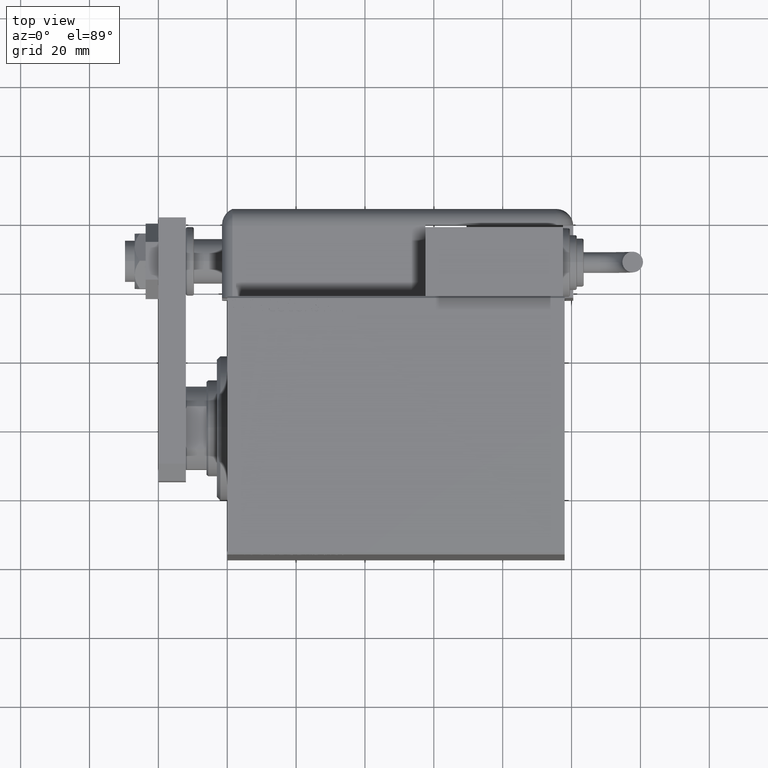
[diagram: clean part render]
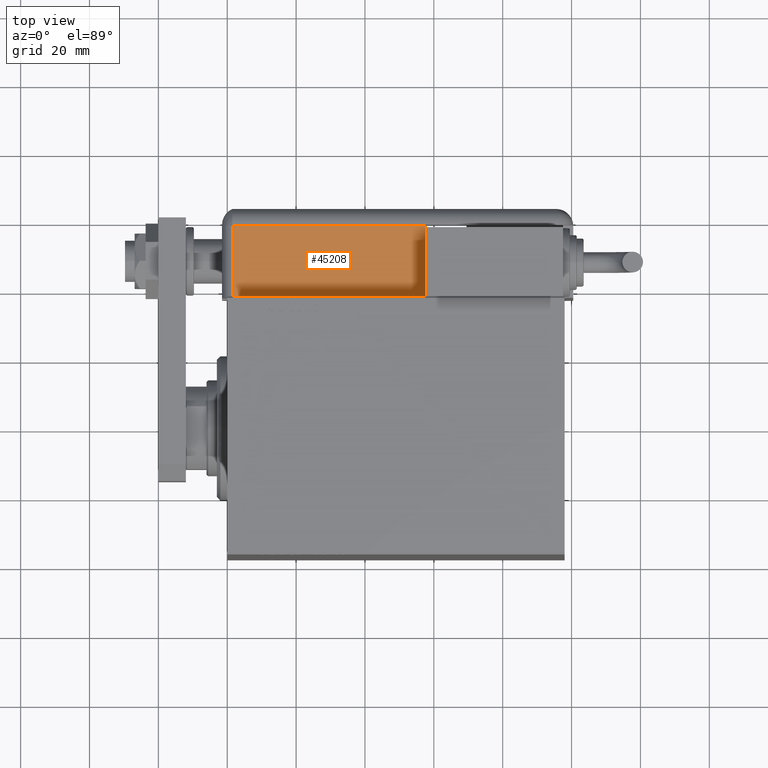
[diagram: same view with one face highlighted and labeled with its STEP entity id]
A machine part, top view. The second image highlights one B-rep face of the part: STEP entity #45208.
In plain terms, the highlighted planar face has unit normal (-0, -0, -1).
Its self-contained STEP definition (entity closure, byte-faithful):
#72 = EDGE_CURVE ( 'NONE', #45538, #23252, #13300, .T. ) ;
#1294 = ORIENTED_EDGE ( 'NONE', *, *, #56072, .F. ) ;
#2520 = ORIENTED_EDGE ( 'NONE', *, *, #35172, .F. ) ;
#2850 = DIRECTION ( 'NONE',  ( -0.000000000000000000, -1.000000000000000000, -0.000000000000000000 ) ) ;
#4861 = DIRECTION ( 'NONE',  ( -0.000000000000000000, 1.000000000000000000, -0.000000000000000000 ) ) ;
#5548 = LINE ( 'NONE', #25363, #55826 ) ;
#5561 = VERTEX_POINT ( 'NONE', #15616 ) ;
#8291 = CARTESIAN_POINT ( 'NONE',  ( 28.99999999999999645, 20.79999999999998295, 99.00000000000000000 ) ) ;
#13159 = AXIS2_PLACEMENT_3D ( 'NONE', #27417, #46004, #22847 ) ;
#13300 = LINE ( 'NONE', #49556, #28911 ) ;
#13456 = VECTOR ( 'NONE', #2850, 1000.000000000000000 ) ;
#15616 = CARTESIAN_POINT ( 'NONE',  ( 28.99999999999999645, 20.79999999999998295, 43.00000000000000000 ) ) ;
#17468 = LINE ( 'NONE', #49175, #13456 ) ;
#22847 = DIRECTION ( 'NONE',  ( 0.000000000000000000, 0.000000000000000000, 1.000000000000000000 ) ) ;
#23252 = VERTEX_POINT ( 'NONE', #44252 ) ;
#25363 = CARTESIAN_POINT ( 'NONE',  ( 28.99999999999999645, 20.79999999999998295, 99.00000000000000000 ) ) ;
#27110 = FACE_OUTER_BOUND ( 'NONE', #49016, .T. ) ;
#27417 = CARTESIAN_POINT ( 'NONE',  ( 28.99999999999999645, 25.79999999999998295, 99.00000000000000000 ) ) ;
#28911 = VECTOR ( 'NONE', #31864, 1000.000000000000000 ) ;
#31864 = DIRECTION ( 'NONE',  ( -0.000000000000000000, -0.000000000000000000, -1.000000000000000000 ) ) ;
#32012 = LINE ( 'NONE', #41746, #41934 ) ;
#32228 = ORIENTED_EDGE ( 'NONE', *, *, #43029, .T. ) ;
#35172 = EDGE_CURVE ( 'NONE', #45538, #36488, #32012, .T. ) ;
#36488 = VERTEX_POINT ( 'NONE', #8291 ) ;
#36877 = ORIENTED_EDGE ( 'NONE', *, *, #72, .T. ) ;
#39079 = DIRECTION ( 'NONE',  ( -0.000000000000000000, -0.000000000000000000, 1.000000000000000000 ) ) ;
#41746 = CARTESIAN_POINT ( 'NONE',  ( 28.99999999999999645, 25.79999999999998295, 99.00000000000000000 ) ) ;
#41934 = VECTOR ( 'NONE', #4861, 1000.000000000000000 ) ;
#43029 = EDGE_CURVE ( 'NONE', #5561, #36488, #5548, .T. ) ;
#44252 = CARTESIAN_POINT ( 'NONE',  ( 28.99999999999999645, 0.000000000000000000, 43.00000000000000000 ) ) ;
#45208 = ADVANCED_FACE ( 'NONE', ( #27110 ), #59690, .F. ) ;
#45538 = VERTEX_POINT ( 'NONE', #46526 ) ;
#46004 = DIRECTION ( 'NONE',  ( -1.000000000000000000, 0.000000000000000000, 0.000000000000000000 ) ) ;
#46526 = CARTESIAN_POINT ( 'NONE',  ( 28.99999999999999645, -9.421223957302265857E-15, 99.00000000000000000 ) ) ;
#49016 = EDGE_LOOP ( 'NONE', ( #36877, #1294, #32228, #2520 ) ) ;
#49175 = CARTESIAN_POINT ( 'NONE',  ( 28.99999999999999645, 0.000000000000000000, 43.00000000000000000 ) ) ;
#49556 = CARTESIAN_POINT ( 'NONE',  ( 28.99999999999999645, -9.421223957302265857E-15, 99.00000000000000000 ) ) ;
#55826 = VECTOR ( 'NONE', #39079, 1000.000000000000000 ) ;
#56072 = EDGE_CURVE ( 'NONE', #5561, #23252, #17468, .T. ) ;
#59690 = PLANE ( 'NONE',  #13159 ) ;